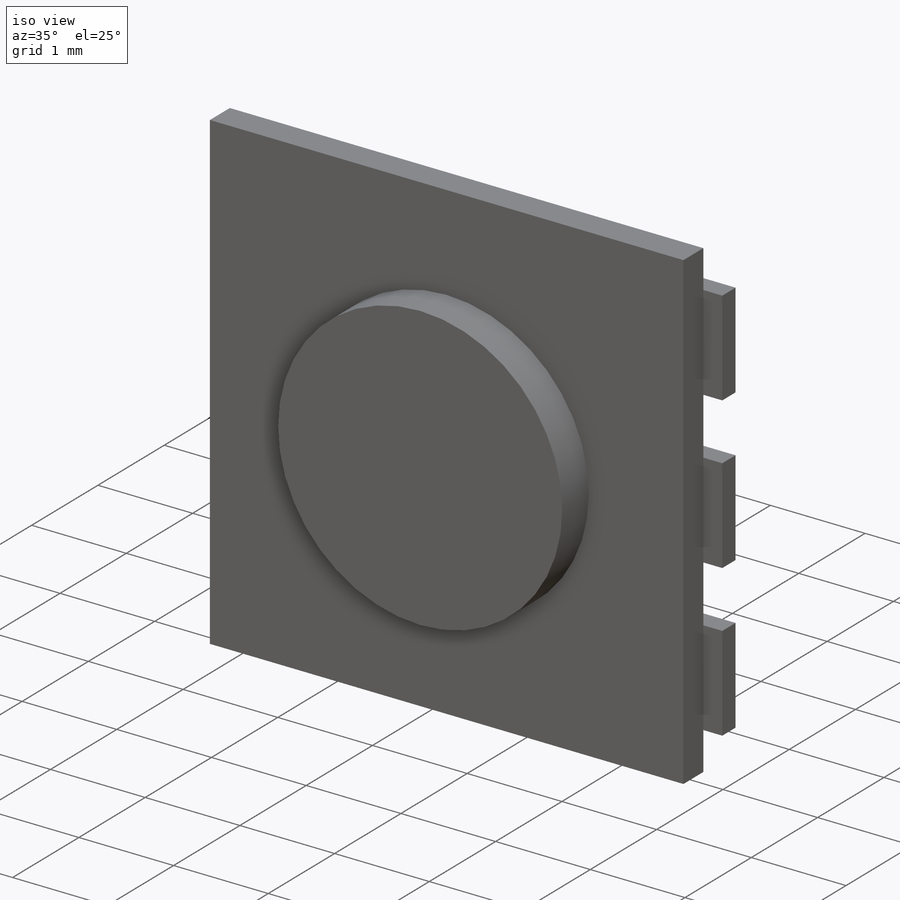
[diagram: iso view]
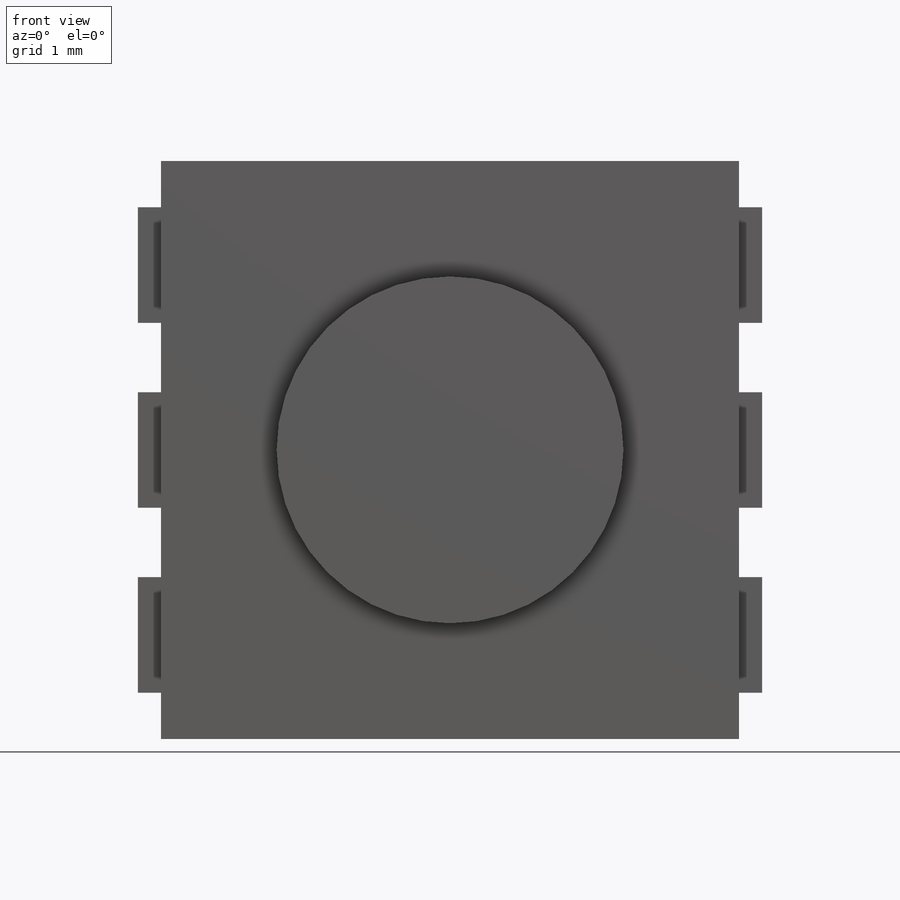
[diagram: front view]
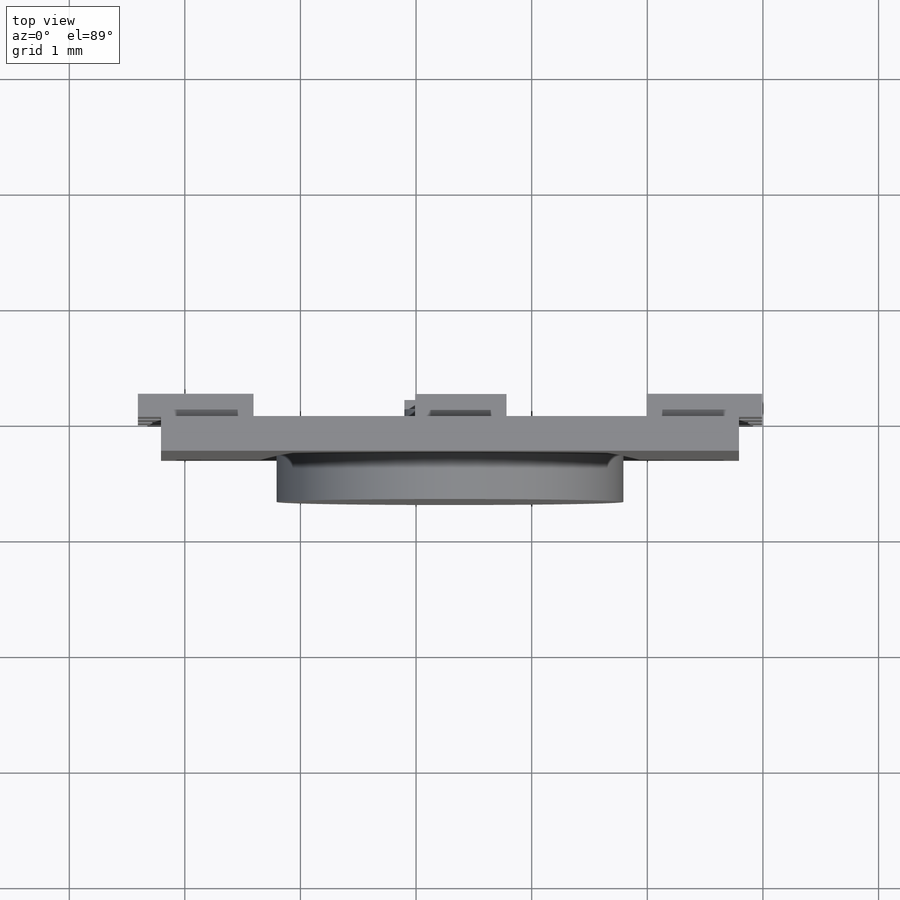
[diagram: top view]
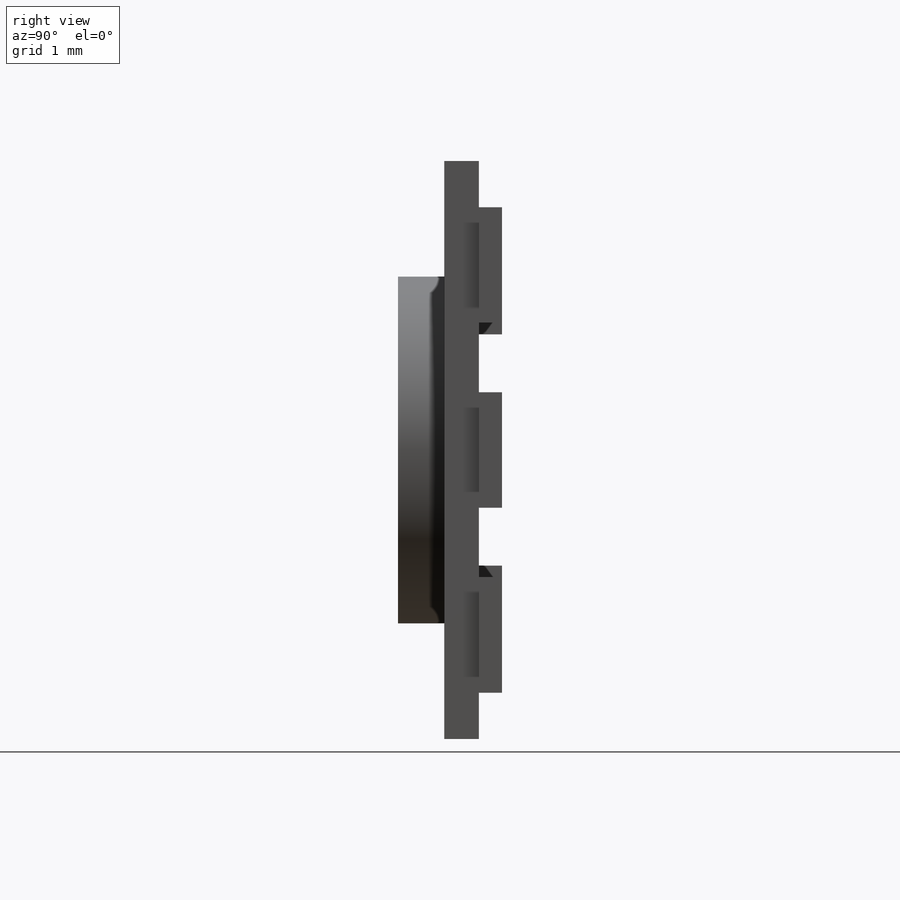
[diagram: right view]
SOLIDWORKS PART (.sldprt)
format: sldprt  version: not decoded by parser v0  size: 342,016 bytes
history: native  units: mm
features: sketch x4, extrude x4, plane x3, material x1 (+9 scaffold rows collapsed)
feature tree (21):
  scaffold x9  (default folders/planes/origin — collapsed)
  material  "Matériau <non spécifié>"
  plane  "Plan de face"
  plane  "Plan de dessus"
  plane  "Plan de droite"
  sketch  "Esquisse1"  dims[D3=3.0mm D1=5.0mm D2=5.0mm D4=2.5mm D5=2.5mm D6=1.0mm D7=0.5mm D8=0.5mm D9=1.0mm D10=1.0mm D11=0.4mm D12=0.2mm]
  extrude  "Boss.-Extru.2"  Depth=0.3mm
  extrude  "Boss.-Extru.3"  [1 undecoded]
  sketch  "Esquisse1<5>"  dims[D1=0.7mm]
  extrude  "Boss.-Extru.4"  [1 undecoded]
  sketch  "Esquisse1<6>"  dims[D1=0.1mm]
  extrude  "Boss.-Extru.5"  [1 undecoded]
  sketch  "Esquisse1<7>"  dims[D1=0.2mm]
decode coverage: 5 of 8 modeling features carry decoded parameters
note: 3 parameter values undecoded
summary: no parameter record found for 3 features
note: suppression state not decoded; provenance and decode notes live in map.json
